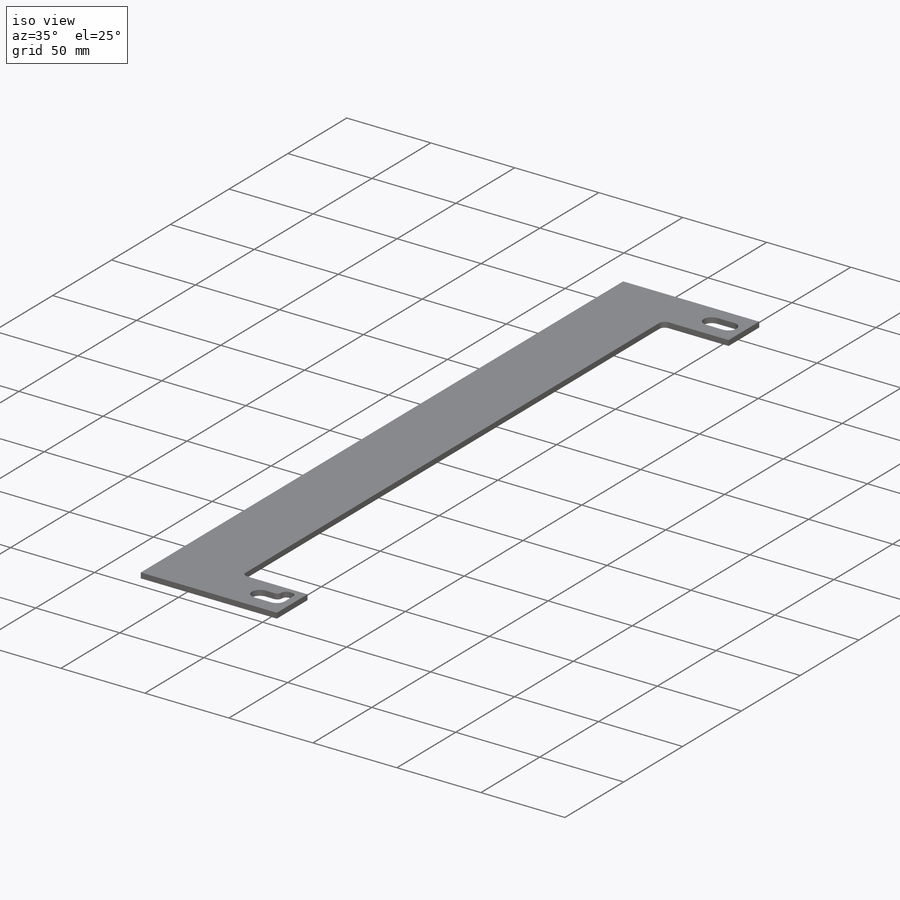
[diagram: iso view]
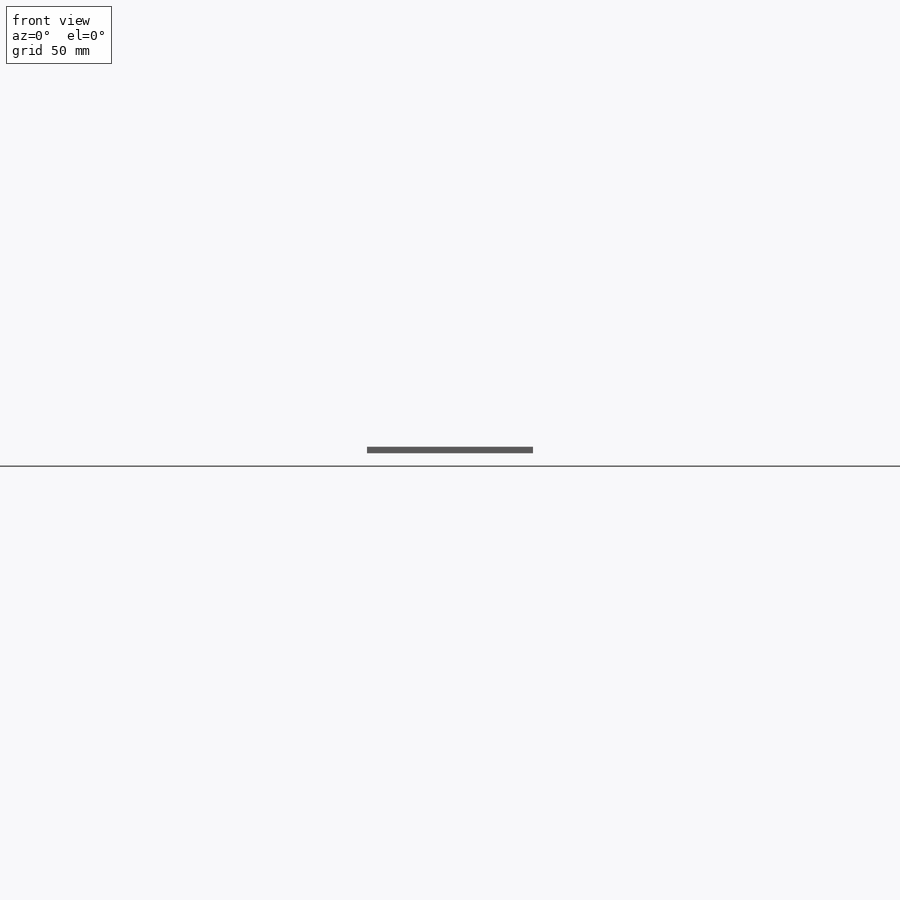
[diagram: front view]
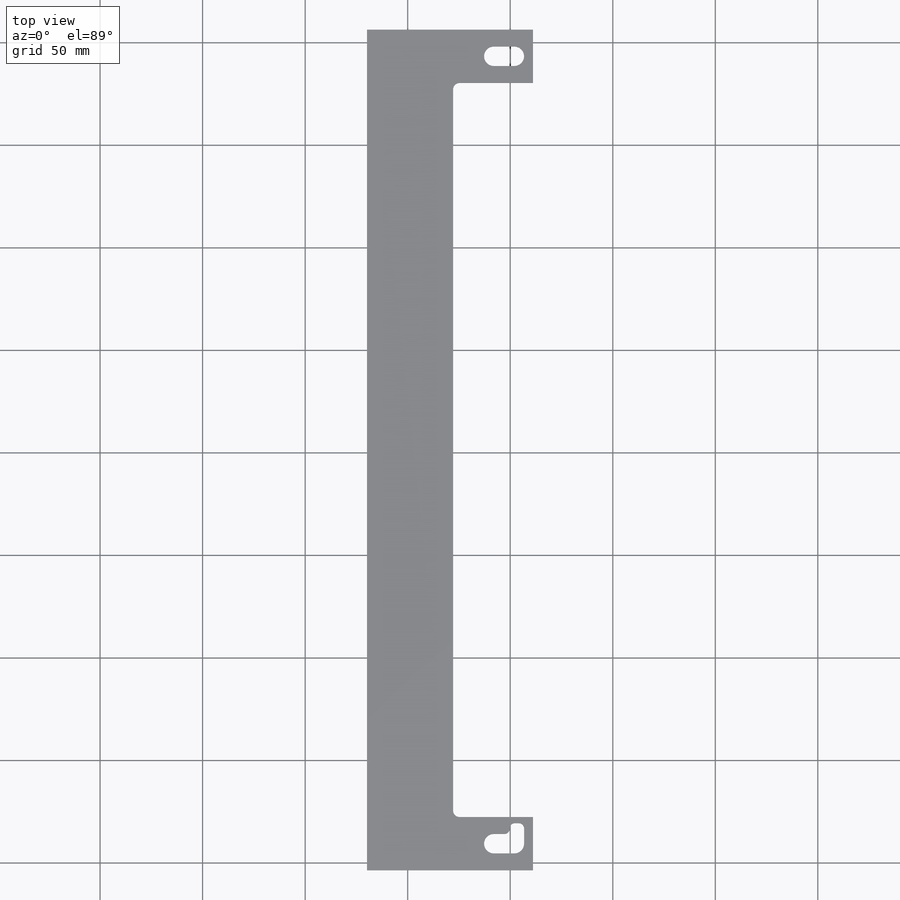
[diagram: top view]
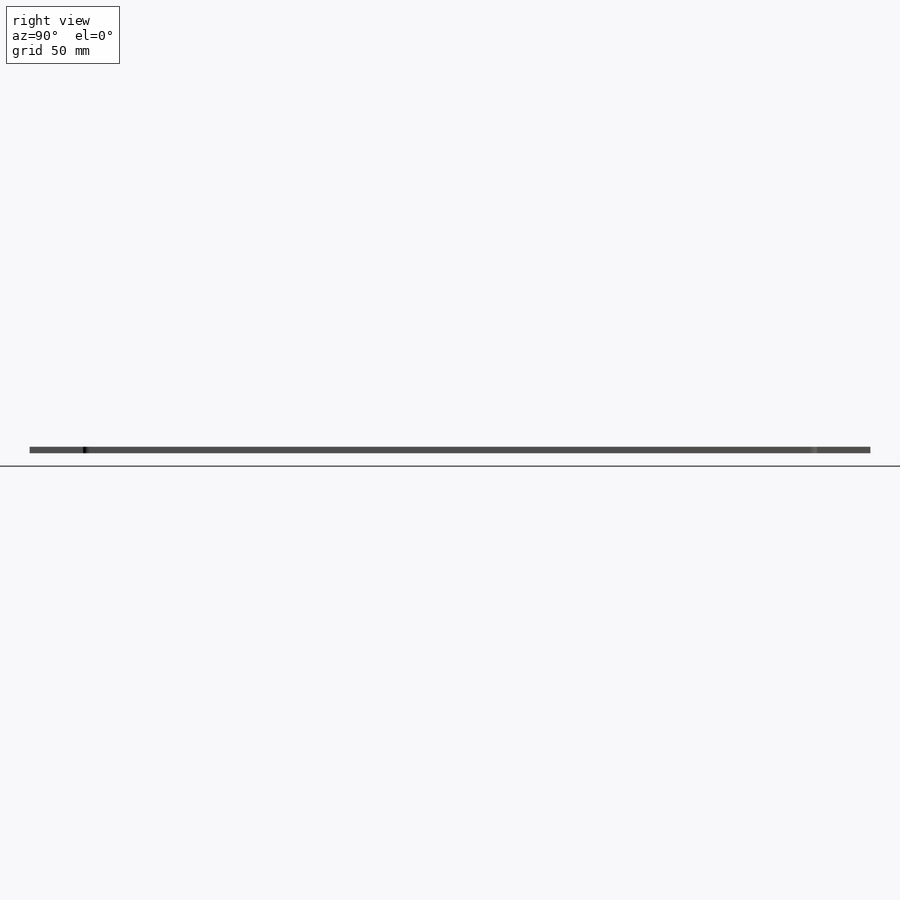
[diagram: right view]
SOLIDWORKS PART (.sldprt)
format: sldprt  version: not decoded by parser v0  size: 202,240 bytes
history: native  units: mm
features: sketch x2, fillet x2, material x1, extrude x1, cut_extrude x1 (+11 scaffold rows collapsed)
feature tree (18):
  scaffold x11  (default folders/planes/origin — collapsed)
  material  "Material <not specified>"
  sketch  "Sketch1"  dims[D3=9.525mm D1=26.0mm D2=42.0mm D4=13.0mm D5=13.0mm D6=2.0mm D7=26.0mm D8=10.0mm D9=~153.70025mm D10=410.0mm D11=11.135mm D12=81.0mm]
  extrude  "Extrude1"  Depth=3.175mm
  sketch  "Sketch2"  dims[D1=10.0mm D2=7.0mm]
  cut_extrude  "Cut-Extrude2"  [1 undecoded]
  fillet  "Fillet1"  Radius=2.5mm
  fillet  "Fillet2"  Radius=3.175mm
decode coverage: 5 of 6 modeling features carry decoded parameters
note: ~ marks probable driven/reference dimensions
note: 1 parameter value undecoded
note: suppression state not decoded; provenance and decode notes live in map.json
